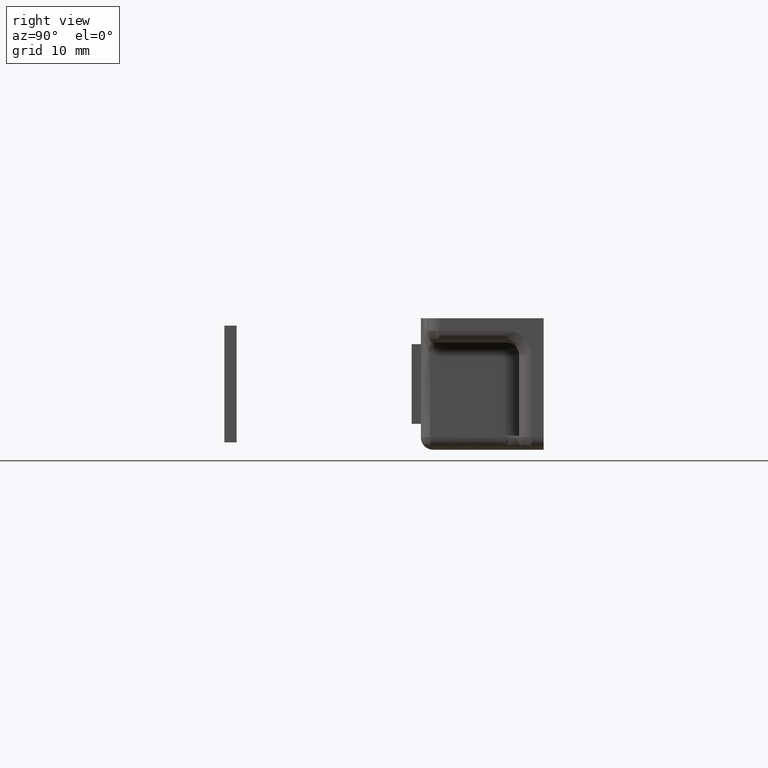
[diagram: clean part render]
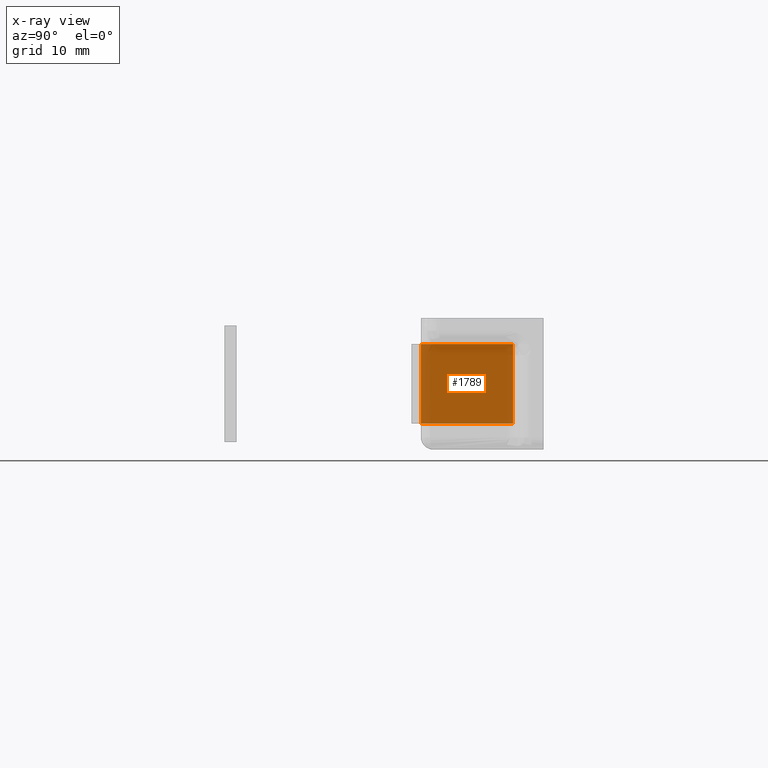
[diagram: x-ray — body ghosted, one internal face saturated and labeled with its STEP entity id]
A machine part, right view, then the same camera in x-ray: the body is ghosted and one INTERNAL B-rep face — a face not visible from any outside direction — is saturated and labeled: STEP entity #1789.
In plain terms, the highlighted face is a freeform B-spline surface patch.
Its self-contained STEP definition (entity closure, byte-faithful):
#1718=CARTESIAN_POINT('',(-30.199999999999250,-5.0,-6.500000000073440));
#1719=VERTEX_POINT('',#1718);
#1725=CARTESIAN_POINT('',(-30.200000000000799,-5.0,6.500000000000000));
#1726=VERTEX_POINT('',#1725);
#1727=CARTESIAN_POINT('',(-30.200000000000799,-5.0,6.500000000000000));
#1728=CARTESIAN_POINT('',(-30.199999999999250,-5.0,-6.500000000073440));
#1729=QUASI_UNIFORM_CURVE('',1,(#1727,#1728),.UNSPECIFIED.,.F.,.U.);
#1730=EDGE_CURVE('',#1726,#1719,#1729,.T.);
#1745=CARTESIAN_POINT('',(-30.199999999999250,-20.0,-6.500000000073440));
#1746=VERTEX_POINT('',#1745);
#1754=CARTESIAN_POINT('',(-30.199999999999250,-5.0,-6.500000000073440));
#1755=CARTESIAN_POINT('',(-30.199999999999250,-20.0,-6.500000000073440));
#1756=QUASI_UNIFORM_CURVE('',1,(#1754,#1755),.UNSPECIFIED.,.F.,.U.);
#1757=EDGE_CURVE('',#1719,#1746,#1756,.T.);
#1768=CARTESIAN_POINT('',(-30.199999999999179,-20.749249970927089,-7.149349974880586));
#1769=CARTESIAN_POINT('',(-30.200000000000930,-20.749249970927089,7.149350323494318));
#1770=CARTESIAN_POINT('',(-30.199999999999179,-4.250749626741560,-7.149349974880586));
#1771=CARTESIAN_POINT('',(-30.200000000000930,-4.250749626741560,7.149350323494318));
#1772=B_SPLINE_SURFACE_WITH_KNOTS('',1,1,((#1768,#1770),(#1769,#1771)),.UNSPECIFIED.,.F.,.F.,.U.,(2,2),(2,2),(0.0,14.298700298374900),(0.0,16.498500344185530),.UNSPECIFIED.);
#1773=CARTESIAN_POINT('',(-30.200000000000799,-20.0,6.500000000000000));
#1774=VERTEX_POINT('',#1773);
#1775=CARTESIAN_POINT('',(-30.200000000000799,-20.0,6.500000000000000));
#1776=CARTESIAN_POINT('',(-30.199999999999250,-20.0,-6.500000000073440));
#1777=QUASI_UNIFORM_CURVE('',1,(#1775,#1776),.UNSPECIFIED.,.F.,.U.);
#1778=EDGE_CURVE('',#1774,#1746,#1777,.T.);
#1779=ORIENTED_EDGE('',*,*,#1778,.F.);
#1780=CARTESIAN_POINT('',(-30.200000000000799,-5.0,6.500000000000000));
#1781=CARTESIAN_POINT('',(-30.200000000000799,-20.0,6.500000000000000));
#1782=QUASI_UNIFORM_CURVE('',1,(#1780,#1781),.UNSPECIFIED.,.F.,.U.);
#1783=EDGE_CURVE('',#1726,#1774,#1782,.T.);
#1784=ORIENTED_EDGE('',*,*,#1783,.F.);
#1785=ORIENTED_EDGE('',*,*,#1730,.T.);
#1786=ORIENTED_EDGE('',*,*,#1757,.T.);
#1787=EDGE_LOOP('',(#1779,#1784,#1785,#1786));
#1788=FACE_OUTER_BOUND('',#1787,.T.);
#1789=ADVANCED_FACE('',(#1788),#1772,.T.);